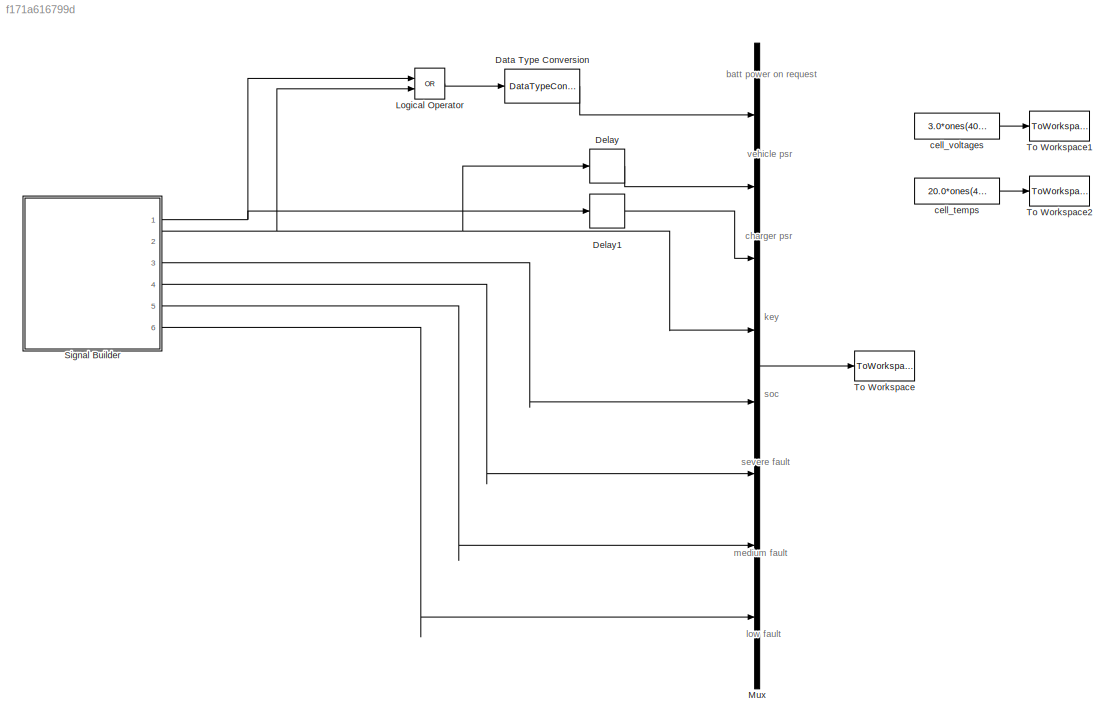
MODEL slx_f171a616799d
KIND model
CONFIG AbsTol = auto
CONFIG FixedStep = 0.01
CONFIG MaxStep = auto
CONFIG MinStep = auto
CONFIG RelTol = 1e-3
CONFIG SampleTimeConstraint = Unconstrained
CONFIG Solver = ode4
CONFIG SolverMode = Auto
CONFIG SolverName = ode4
CONFIG StartTime = 0.0
CONFIG StopTime = 10.0
BLOCK [DataTypeConversion] Data Type Conversion
  RndMeth = Floor
  SaturateOnIntegerOverflow = off
BLOCK [Delay] Delay
  DelayLength = 0.2/0.1
  InputPortMap = u0
  Ports = [1, 1]
BLOCK [Delay] Delay1
  DelayLength = 0.2/0.1
  InputPortMap = u0
  Ports = [1, 1]
BLOCK [Logic] Logical Operator
  AllPortsSameDT = off
  Operator = OR
  OutDataTypeStr = boolean
  Ports = [2, 1]
BLOCK [Mux] Mux
  DisplayOption = bar
  Inputs = 8
  Ports = [8, 1]
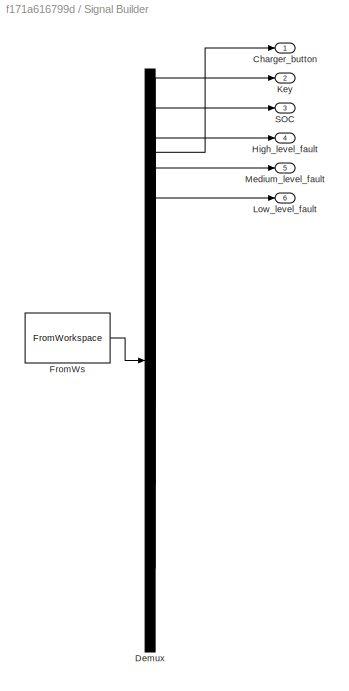
BLOCK [SubSystem] Signal Builder
  ClipboardFcn = sigbuilder_block('clipboard');
  CloseFcn = sigbuilder_block('close');
  ContinueFcn = sigbuilder_block('continue');
  CopyFcn = sigbuilder_block('copy');
  DeleteFcn = sigbuilder_block('delete');
  LoadFcn = sigbuilder_block('load');
  MaskHideContents = on
  ModelCloseFcn = sigbuilder_block('modelClose');
  NameChangeFcn = sigbuilder_block('namechange');
  OpenFcn = sigbuilder_block('open',[0 30 1152 561.6 ]);
  PauseFcn = sigbuilder_block('pause');
  Ports = [0, 6]
  PreSaveFcn = sigbuilder_block('preSave');
  RequestExecContextInheritance = off
  StartFcn = sigbuilder_block('start');
  StopFcn = sigbuilder_block('stop');
  Tag = STV Subsys
  Variant = off
BLOCK [Outport] Signal Builder/Charger_button
  IconDisplay = Port number
  Tag = STV Outport
BLOCK [Demux] Signal Builder/Demux
  Outputs = 6
  Ports = [1, 6]
  Tag = STV Demux
BLOCK [FromWorkspace] Signal Builder/FromWs
  SampleTime = 0
  Tag = STV FromWs
  VariableName = tuvar
  ZeroCross = on
BLOCK [Outport] Signal Builder/High_level_fault
  IconDisplay = Port number
  Port = 4
  Tag = STV Outport
BLOCK [Outport] Signal Builder/Key
  IconDisplay = Port number
  Port = 2
  Tag = STV Outport
BLOCK [Outport] Signal Builder/Low_level_fault
  IconDisplay = Port number
  Port = 6
  Tag = STV Outport
BLOCK [Outport] Signal Builder/Medium_level_fault
  IconDisplay = Port number
  Port = 5
  Tag = STV Outport
BLOCK [Outport] Signal Builder/SOC
  IconDisplay = Port number
  Port = 3
  Tag = STV Outport
BLOCK [ToWorkspace] To Workspace
  FixptAsFi = on
  MaxDataPoints = inf
  Ports = [1]
  SampleTime = -1
  Save2DSignal = 3-D array (concatenate along third dimension)
  SaveFormat = Timeseries
  VariableName = test_set
BLOCK [ToWorkspace] To Workspace1
  FixptAsFi = on
  MaxDataPoints = inf
  Ports = [1]
  SampleTime = -1
  Save2DSignal = 3-D array (concatenate along third dimension)
  SaveFormat = Timeseries
  VariableName = cell_voltages
BLOCK [ToWorkspace] To Workspace2
  FixptAsFi = on
  MaxDataPoints = inf
  Ports = [1]
  SampleTime = -1
  Save2DSignal = 3-D array (concatenate along third dimension)
  SaveFormat = Timeseries
  VariableName = cell_temps
BLOCK [Constant] cell_temps
  Value = 20.0*ones(40,1)
BLOCK [Constant] cell_voltages
  Value = 3.0*ones(40,1)
ANNOTATION (root): batt power on request
ANNOTATION (root): charger psr
ANNOTATION (root): key
ANNOTATION (root): low fault
ANNOTATION (root): medium fault
ANNOTATION (root): severe fault
ANNOTATION (root): soc
ANNOTATION (root): vehicle psr
LINE Data Type Conversion:1 -> Mux:1
LINE Delay1:1 -> Mux:3
LINE Delay:1 -> Mux:2
LINE Logical Operator:1 -> Data Type Conversion:1
LINE Mux:1 -> To Workspace:1
NET Signal Builder:1 -> Delay1:1, Logical Operator:1
NET Signal Builder:2 -> Delay:1, Logical Operator:2, Mux:4
LINE Signal Builder:3 -> Mux:5
LINE Signal Builder:4 -> Mux:6
LINE Signal Builder:5 -> Mux:7
LINE Signal Builder:6 -> Mux:8
LINE cell_temps:1 -> To Workspace2:1
LINE cell_voltages:1 -> To Workspace1:1
note: NET lines group one-source signal fan-out (src -> all destinations, sorted); 1:1 wires keep LINE
